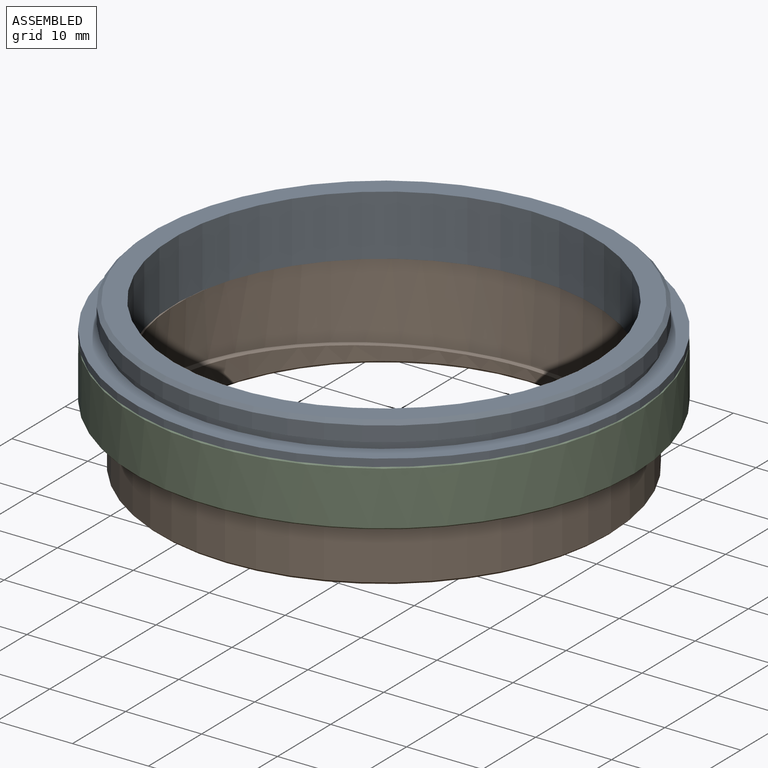
[diagram: assembled view]
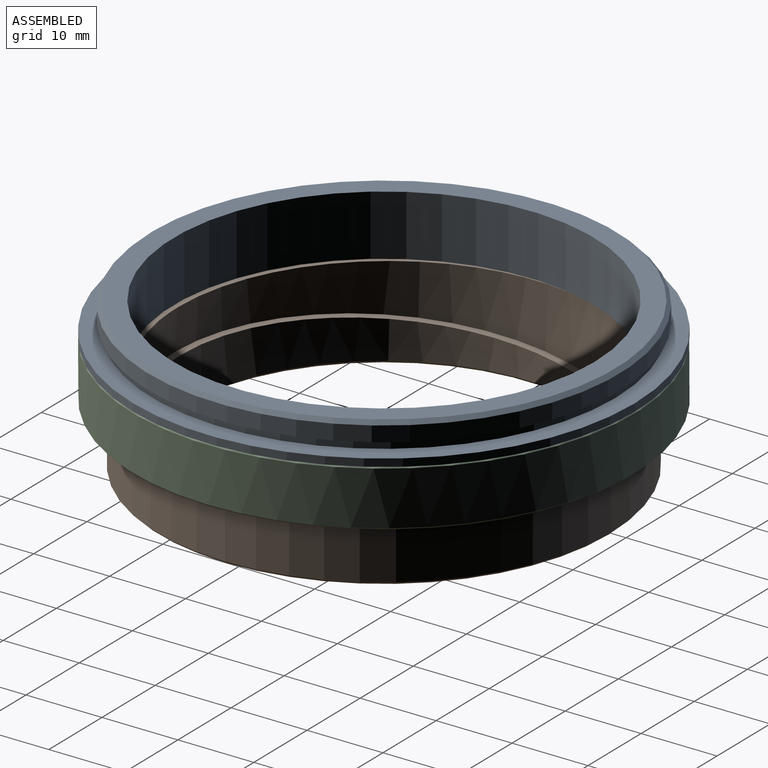
[diagram: assembled view, second angle]
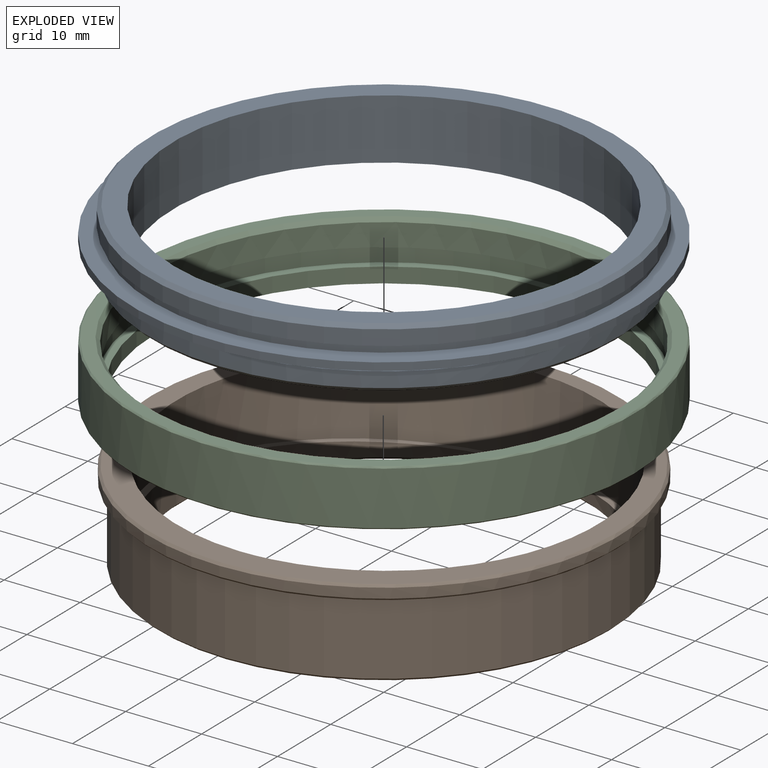
[diagram: exploded view]
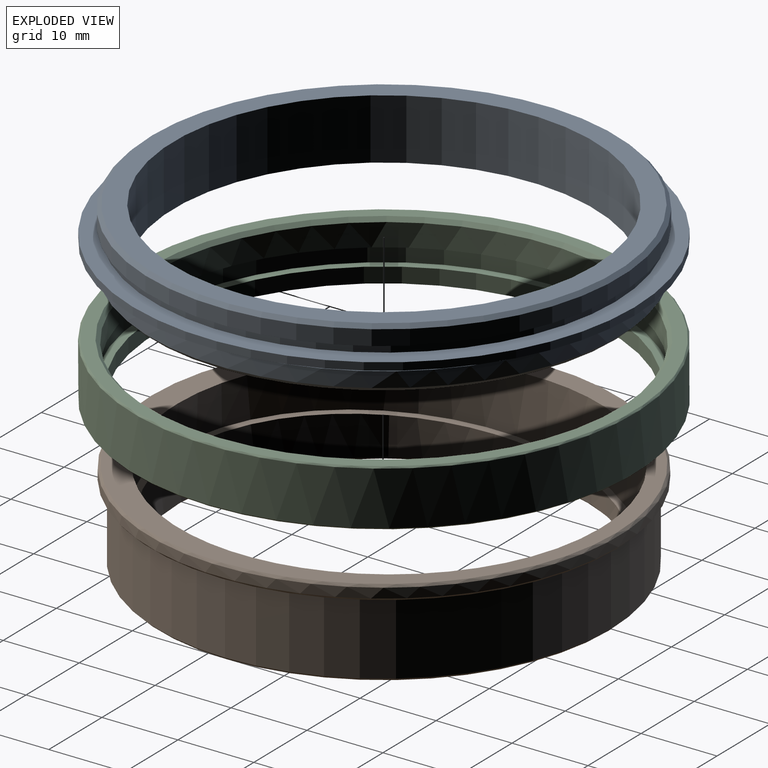
[diagram: exploded view, second angle]
ASSEMBLY  parts=3 mates=4
PART A: 14 faces, bbox 66x66x8 mm
  f0: cylinder r=27.7mm len=55.4mm, axis (0,0,-1), area 1392.4mm2, adj f1,f13
  f1: plane 61x61mm, normal (0,0,-1), area 512mm2, adj f0,f2
  f2: cone r=30.75mm half-angle=45deg, axis (0,0,1), area 136.6mm2, adj f1,f3
  f3: cylinder r=31mm len=62mm, axis (0,0,-1), area 389.6mm2, adj f2,f4
  f4: plane 62x62mm, normal (0,0,1), area 96.6mm2, adj f3,f5
  f5: cylinder r=30.5mm len=61mm, axis (0,0,-1), area 191.6mm2, adj f4,f6
  f6: plane 66x66mm, normal (0,0,-1), area 498.7mm2, adj f5,f7
  f7: cylinder r=33mm len=66mm, axis (0,0,-1), area 207.3mm2, adj f6,f8
  f8: plane 66x66mm, normal (0,0,1), area 498.7mm2, adj f7,f9
  f9: cylinder r=30.5mm len=61mm, axis (0,0,-1), area 191.6mm2, adj f8,f10
  f10: plane 62x62mm, normal (0,0,-1), area 96.6mm2, adj f9,f11
  f11: cylinder r=31mm len=62mm, axis (0,0,-1), area 389.6mm2, adj f10,f12
  f12: cone r=30.75mm half-angle=45deg, axis (0,0,-1), area 136.6mm2, adj f11,f13
  f13: plane 61x61mm, normal (0,0,1), area 512mm2, adj f0,f12
PART B: 12 faces, bbox 61.8x61.8x16.7 mm
  f0: cylinder r=26.7mm len=53.4mm, axis (0,0,-1), area 620.8mm2, adj f1,f11
  f1: plane 55.4x55.19mm, normal (0,0.09,1), area 163.8mm2, adj f0,f2
  f2: cylinder r=27.7mm len=56.09mm, axis (0,-0.09,-1), area 1380.1mm2, adj f1,f3
  f3: plane 61.2x61.2mm, normal (0,0,1), area 523.5mm2, adj f2,f4
  f4: cone r=30.75mm half-angle=45deg, axis (0,0,-1), area 82mm2, adj f3,f5
  f5: cylinder r=30.9mm len=61.8mm, axis (0,0,-1), area 252.4mm2, adj f4,f6
  f6: cone r=30.75mm half-angle=45deg, axis (0,0,1), area 82mm2, adj f5,f7
  f7: plane 61.2x61.2mm, normal (0,0,-1), area 133mm2, adj f6,f8
  f8: cylinder r=29.9mm len=59.8mm, axis (0,0,-1), area 1822.3mm2, adj f7,f9
  f9: cone r=29.75mm half-angle=45deg, axis (0,0,1), area 79.3mm2, adj f8,f10
  f10: plane 59.2x59.2mm, normal (0,0,-1), area 462.3mm2, adj f9,f11
  f11: cone r=26.85mm half-angle=45deg, axis (0,0,-1), area 71.6mm2, adj f0,f10
PART C: 11 faces, bbox 66x66x7.5 mm
  f0: cylinder r=30.62mm len=61.25mm, axis (0,0,-1), area 577.3mm2, adj f1,f2
  f1: cone r=30.88mm half-angle=45deg, axis (0,0,1), area 137.2mm2, adj f0,f10
  f2: plane 62.2x62.2mm, normal (0,0,-1), area 92.1mm2, adj f0,f3
  f3: cylinder r=31.1mm len=62.2mm, axis (0,0,-1), area 390.8mm2, adj f2,f4
  f4: plane 62.2x62.2mm, normal (0,0,1), area 211.1mm2, adj f3,f5
  f5: cylinder r=30mm len=60mm, axis (0,0,-1), area 377mm2, adj f4,f6
  f6: plane 65.6x65.6mm, normal (0,0,-1), area 552.4mm2, adj f5,f7
  f7: cone r=32.9mm half-angle=45deg, axis (0,0,1), area 58.5mm2, adj f6,f8
  f8: cylinder r=33mm len=66mm, axis (0,0,-1), area 1472.2mm2, adj f7,f9
  f9: cone r=32.9mm half-angle=45deg, axis (0,0,-1), area 58.5mm2, adj f8,f10
  f10: plane 65.6x65.6mm, normal (0,0,1), area 336.4mm2, adj f1,f9
PLACE A t=(3.03,-15.74,20.65)mm
PLACE B t=(3.03,-15.74,8.65)mm
PLACE C t=(3.03,-15.74,16.65)mm
MATE planar C.f0 <-> B.f6  axis (0,0,1) through (3.03,-15.74,18.65)mm
MATE planar A.f0 <-> C.f0  axis (0,0,-1) through (3.03,-15.74,24.15)mm
MATE slider C.f0 <-> A.f0  axis (0,0,-1) through (3.03,-15.74,22.15)mm
MATE slider B.f0 <-> C.f0  axis (0,0,-1) through (3.03,-15.74,13.8)mm
